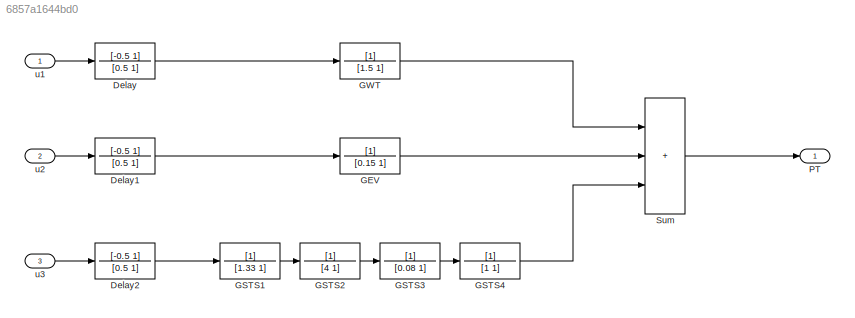
MODEL slx_6857a1644bd0
KIND model
CONFIG AbsTol = auto
CONFIG EnableMultiTasking = on
CONFIG FixedStep = auto
CONFIG MaxStep = auto
CONFIG MinStep = auto
CONFIG RelTol = 1e-3
CONFIG SampleTimeConstraint = Unconstrained
CONFIG SolverName = ode45
CONFIG StartTime = 0.0
CONFIG StopTime = 24
BLOCK [TransferFcn] Delay
  Denominator = [0.5 1]
  Numerator = [-0.5 1]
BLOCK [TransferFcn] Delay1
  Denominator = [0.5 1]
  Numerator = [-0.5 1]
BLOCK [TransferFcn] Delay2
  Denominator = [0.5 1]
  Numerator = [-0.5 1]
BLOCK [TransferFcn] GEV
  Denominator = [0.15 1]
BLOCK [TransferFcn] GSTS1
  Denominator = [1.33 1]
BLOCK [TransferFcn] GSTS2
  Denominator = [4 1]
BLOCK [TransferFcn] GSTS3
  Denominator = [0.08 1]
BLOCK [TransferFcn] GSTS4
  Denominator = [1 1]
BLOCK [TransferFcn] GWT
  Denominator = [1.5 1]
BLOCK [Outport] PT
BLOCK [Sum] Sum
  IconShape = rectangular
  Inputs = +++
  Ports = [3, 1]
BLOCK [Inport] u1
BLOCK [Inport] u2
  Port = 2
BLOCK [Inport] u3
  Port = 3
LINE Delay1:1 -> GEV:1
LINE Delay2:1 -> GSTS1:1
LINE Delay:1 -> GWT:1
LINE GEV:1 -> Sum:2
LINE GSTS1:1 -> GSTS2:1
LINE GSTS2:1 -> GSTS3:1
LINE GSTS3:1 -> GSTS4:1
LINE GSTS4:1 -> Sum:3
LINE GWT:1 -> Sum:1
LINE Sum:1 -> PT:1
LINE u1:1 -> Delay:1
LINE u2:1 -> Delay1:1
LINE u3:1 -> Delay2:1
